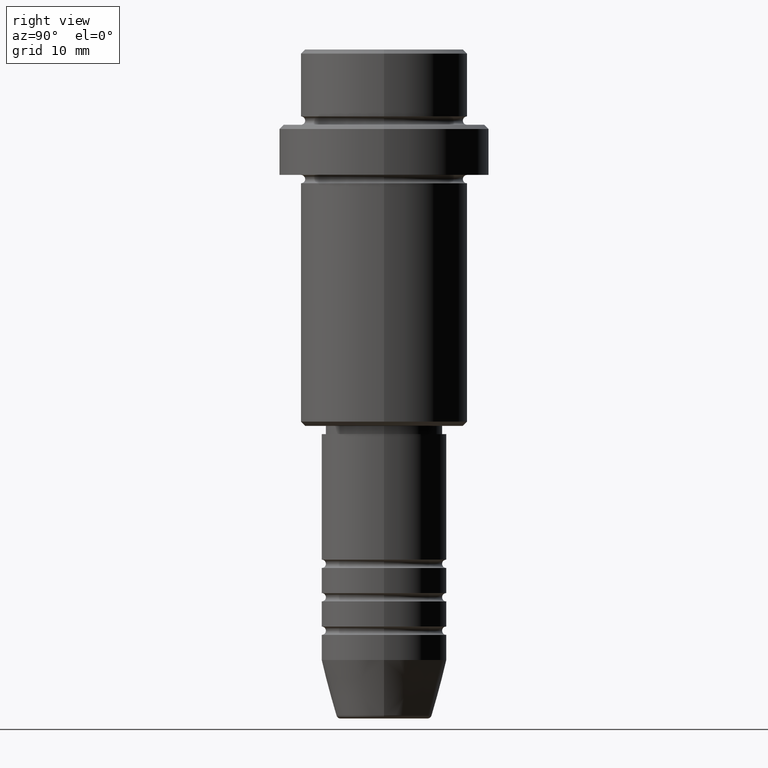
[diagram: clean part render]
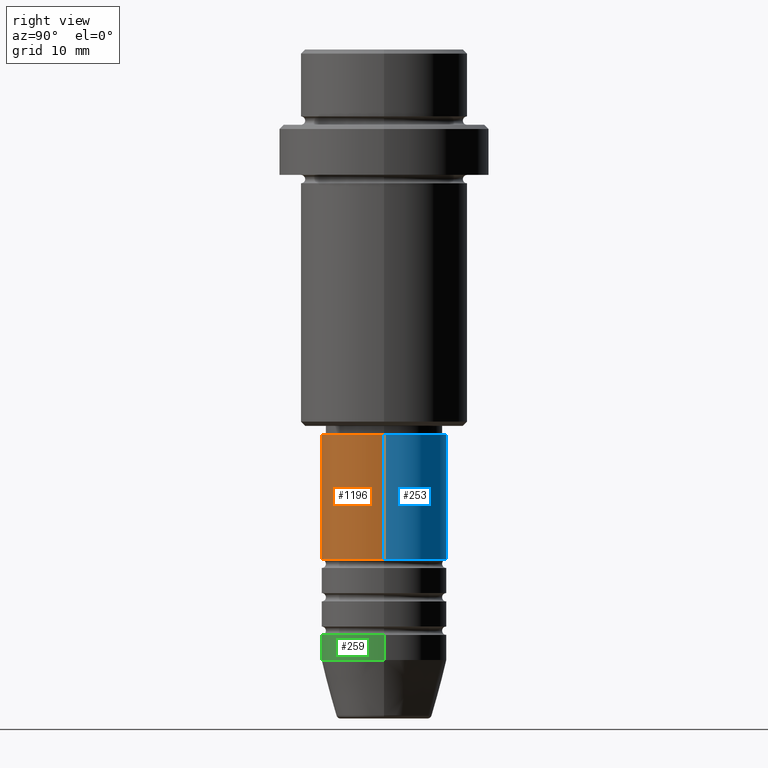
[diagram: same view with three faces highlighted in distinct colors, each labeled with its STEP entity id]
A machine part, right view with three faces highlighted in distinct colors.
Their STEP definitions:

[orange] entity #1196 — the highlighted cylindrical surface (partial cylindrical patch) has radius 7.5 mm, axis along (-0, -0, 1).
#59 = CARTESIAN_POINT ( 'NONE',  ( -7.500000000000000000, 9.184850993605147944E-16, -46.00000000000000000 ) ) ;
#84 = EDGE_CURVE ( 'NONE', #439, #211, #1319, .T. ) ;
#114 = CIRCLE ( 'NONE', #289, 7.500000000000000000 ) ;
#211 = VERTEX_POINT ( 'NONE', #630 ) ;
#257 = CARTESIAN_POINT ( 'NONE',  ( 0.000000000000000000, 0.000000000000000000, 0.000000000000000000 ) ) ;
#266 = VERTEX_POINT ( 'NONE', #1335 ) ;
#267 = DIRECTION ( 'NONE',  ( -0.000000000000000000, -0.000000000000000000, 1.000000000000000000 ) ) ;
#289 = AXIS2_PLACEMENT_3D ( 'NONE', #874, #307, #752 ) ;
#307 = DIRECTION ( 'NONE',  ( -0.000000000000000000, -0.000000000000000000, 1.000000000000000000 ) ) ;
#316 = DIRECTION ( 'NONE',  ( -0.000000000000000000, -0.000000000000000000, 1.000000000000000000 ) ) ;
#389 = CARTESIAN_POINT ( 'NONE',  ( -7.500000000000000000, 9.184850993605147944E-16, -60.99999999999989342 ) ) ;
#439 = VERTEX_POINT ( 'NONE', #59 ) ;
#477 = DIRECTION ( 'NONE',  ( 1.000000000000000000, 0.000000000000000000, 0.000000000000000000 ) ) ;
#557 = DIRECTION ( 'NONE',  ( 1.000000000000000000, 0.000000000000000000, 0.000000000000000000 ) ) ;
#573 = FACE_OUTER_BOUND ( 'NONE', #959, .T. ) ;
#578 = ORIENTED_EDGE ( 'NONE', *, *, #604, .F. ) ;
#604 = EDGE_CURVE ( 'NONE', #801, #439, #631, .T. ) ;
#616 = EDGE_CURVE ( 'NONE', #266, #211, #1199, .T. ) ;
#630 = CARTESIAN_POINT ( 'NONE',  ( 7.500000000000000000, 0.000000000000000000, -46.00000000000000000 ) ) ;
#631 = LINE ( 'NONE', #781, #1237 ) ;
#707 = EDGE_CURVE ( 'NONE', #801, #266, #114, .T. ) ;
#718 = CARTESIAN_POINT ( 'NONE',  ( 0.000000000000000000, 0.000000000000000000, -46.00000000000000000 ) ) ;
#725 = AXIS2_PLACEMENT_3D ( 'NONE', #257, #1221, #557 ) ;
#752 = DIRECTION ( 'NONE',  ( 1.000000000000000000, 0.000000000000000000, 0.000000000000000000 ) ) ;
#781 = CARTESIAN_POINT ( 'NONE',  ( -7.500000000000000000, 9.184850993605147944E-16, 0.000000000000000000 ) ) ;
#801 = VERTEX_POINT ( 'NONE', #389 ) ;
#802 = VECTOR ( 'NONE', #316, 1000.000000000000000 ) ;
#874 = CARTESIAN_POINT ( 'NONE',  ( 0.000000000000000000, 0.000000000000000000, -60.99999999999989342 ) ) ;
#880 = CARTESIAN_POINT ( 'NONE',  ( 7.500000000000000000, 0.000000000000000000, 0.000000000000000000 ) ) ;
#940 = AXIS2_PLACEMENT_3D ( 'NONE', #718, #267, #477 ) ;
#959 = EDGE_LOOP ( 'NONE', ( #578, #1022, #1048, #1289 ) ) ;
#993 = DIRECTION ( 'NONE',  ( -0.000000000000000000, -0.000000000000000000, 1.000000000000000000 ) ) ;
#1022 = ORIENTED_EDGE ( 'NONE', *, *, #707, .T. ) ;
#1031 = CYLINDRICAL_SURFACE ( 'NONE', #725, 7.500000000000000000 ) ;
#1048 = ORIENTED_EDGE ( 'NONE', *, *, #616, .T. ) ;
#1196 = ADVANCED_FACE ( 'NONE', ( #573 ), #1031, .T. ) ;
#1199 = LINE ( 'NONE', #880, #802 ) ;
#1221 = DIRECTION ( 'NONE',  ( -0.000000000000000000, -0.000000000000000000, 1.000000000000000000 ) ) ;
#1237 = VECTOR ( 'NONE', #993, 1000.000000000000000 ) ;
#1289 = ORIENTED_EDGE ( 'NONE', *, *, #84, .F. ) ;
#1319 = CIRCLE ( 'NONE', #940, 7.500000000000000000 ) ;
#1335 = CARTESIAN_POINT ( 'NONE',  ( 7.500000000000000000, 0.000000000000000000, -60.99999999999989342 ) ) ;

[blue] entity #253 — the highlighted cylindrical surface (partial cylindrical patch) has radius 7.5 mm, axis along (-0, -0, 1).
#17 = ORIENTED_EDGE ( 'NONE', *, *, #604, .T. ) ;
#19 = CYLINDRICAL_SURFACE ( 'NONE', #110, 7.500000000000000000 ) ;
#59 = CARTESIAN_POINT ( 'NONE',  ( -7.500000000000000000, 9.184850993605147944E-16, -46.00000000000000000 ) ) ;
#80 = DIRECTION ( 'NONE',  ( 1.000000000000000000, 0.000000000000000000, 0.000000000000000000 ) ) ;
#94 = DIRECTION ( 'NONE',  ( -0.000000000000000000, -0.000000000000000000, 1.000000000000000000 ) ) ;
#110 = AXIS2_PLACEMENT_3D ( 'NONE', #255, #1246, #462 ) ;
#211 = VERTEX_POINT ( 'NONE', #630 ) ;
#253 = ADVANCED_FACE ( 'NONE', ( #1116 ), #19, .T. ) ;
#255 = CARTESIAN_POINT ( 'NONE',  ( 0.000000000000000000, 0.000000000000000000, 0.000000000000000000 ) ) ;
#266 = VERTEX_POINT ( 'NONE', #1335 ) ;
#316 = DIRECTION ( 'NONE',  ( -0.000000000000000000, -0.000000000000000000, 1.000000000000000000 ) ) ;
#379 = AXIS2_PLACEMENT_3D ( 'NONE', #1201, #94, #1172 ) ;
#389 = CARTESIAN_POINT ( 'NONE',  ( -7.500000000000000000, 9.184850993605147944E-16, -60.99999999999989342 ) ) ;
#439 = VERTEX_POINT ( 'NONE', #59 ) ;
#451 = EDGE_CURVE ( 'NONE', #266, #801, #1186, .T. ) ;
#462 = DIRECTION ( 'NONE',  ( 1.000000000000000000, 0.000000000000000000, 0.000000000000000000 ) ) ;
#600 = ORIENTED_EDGE ( 'NONE', *, *, #451, .T. ) ;
#604 = EDGE_CURVE ( 'NONE', #801, #439, #631, .T. ) ;
#616 = EDGE_CURVE ( 'NONE', #266, #211, #1199, .T. ) ;
#630 = CARTESIAN_POINT ( 'NONE',  ( 7.500000000000000000, 0.000000000000000000, -46.00000000000000000 ) ) ;
#631 = LINE ( 'NONE', #781, #1237 ) ;
#679 = ORIENTED_EDGE ( 'NONE', *, *, #1358, .F. ) ;
#696 = ORIENTED_EDGE ( 'NONE', *, *, #616, .F. ) ;
#781 = CARTESIAN_POINT ( 'NONE',  ( -7.500000000000000000, 9.184850993605147944E-16, 0.000000000000000000 ) ) ;
#801 = VERTEX_POINT ( 'NONE', #389 ) ;
#802 = VECTOR ( 'NONE', #316, 1000.000000000000000 ) ;
#880 = CARTESIAN_POINT ( 'NONE',  ( 7.500000000000000000, 0.000000000000000000, 0.000000000000000000 ) ) ;
#993 = DIRECTION ( 'NONE',  ( -0.000000000000000000, -0.000000000000000000, 1.000000000000000000 ) ) ;
#1002 = EDGE_LOOP ( 'NONE', ( #600, #17, #679, #696 ) ) ;
#1116 = FACE_OUTER_BOUND ( 'NONE', #1002, .T. ) ;
#1172 = DIRECTION ( 'NONE',  ( 1.000000000000000000, 0.000000000000000000, 0.000000000000000000 ) ) ;
#1179 = CIRCLE ( 'NONE', #379, 7.500000000000000000 ) ;
#1186 = CIRCLE ( 'NONE', #1371, 7.500000000000000000 ) ;
#1199 = LINE ( 'NONE', #880, #802 ) ;
#1201 = CARTESIAN_POINT ( 'NONE',  ( 0.000000000000000000, 0.000000000000000000, -46.00000000000000000 ) ) ;
#1237 = VECTOR ( 'NONE', #993, 1000.000000000000000 ) ;
#1246 = DIRECTION ( 'NONE',  ( -0.000000000000000000, -0.000000000000000000, 1.000000000000000000 ) ) ;
#1272 = DIRECTION ( 'NONE',  ( -0.000000000000000000, -0.000000000000000000, 1.000000000000000000 ) ) ;
#1335 = CARTESIAN_POINT ( 'NONE',  ( 7.500000000000000000, 0.000000000000000000, -60.99999999999989342 ) ) ;
#1358 = EDGE_CURVE ( 'NONE', #211, #439, #1179, .T. ) ;
#1371 = AXIS2_PLACEMENT_3D ( 'NONE', #1373, #1272, #80 ) ;
#1373 = CARTESIAN_POINT ( 'NONE',  ( 0.000000000000000000, 0.000000000000000000, -60.99999999999989342 ) ) ;

[green] entity #259 — the highlighted cylindrical surface (partial cylindrical patch) has radius 7.5 mm, axis along (-0, -0, 1).
#3 = DIRECTION ( 'NONE',  ( 1.000000000000000000, 0.000000000000000000, 0.000000000000000000 ) ) ;
#53 = CARTESIAN_POINT ( 'NONE',  ( 0.000000000000000000, 0.000000000000000000, -73.00000000000001421 ) ) ;
#83 = CARTESIAN_POINT ( 'NONE',  ( -7.500000000000000000, 9.184850993605147944E-16, 0.000000000000000000 ) ) ;
#85 = EDGE_CURVE ( 'NONE', #1010, #1230, #270, .T. ) ;
#176 = DIRECTION ( 'NONE',  ( 1.000000000000000000, 0.000000000000000000, 0.000000000000000000 ) ) ;
#178 = CARTESIAN_POINT ( 'NONE',  ( 7.500000000000000000, 0.000000000000000000, 0.000000000000000000 ) ) ;
#237 = VERTEX_POINT ( 'NONE', #262 ) ;
#259 = ADVANCED_FACE ( 'NONE', ( #697 ), #364, .T. ) ;
#262 = CARTESIAN_POINT ( 'NONE',  ( -7.500000000000000000, 9.184850993605147944E-16, -70.00000000000000000 ) ) ;
#268 = DIRECTION ( 'NONE',  ( -0.000000000000000000, -0.000000000000000000, 1.000000000000000000 ) ) ;
#270 = CIRCLE ( 'NONE', #799, 7.500000000000000000 ) ;
#329 = CARTESIAN_POINT ( 'NONE',  ( 0.000000000000000000, 0.000000000000000000, -70.00000000000000000 ) ) ;
#364 = CYLINDRICAL_SURFACE ( 'NONE', #843, 7.500000000000000000 ) ;
#423 = AXIS2_PLACEMENT_3D ( 'NONE', #329, #992, #3 ) ;
#461 = VERTEX_POINT ( 'NONE', #625 ) ;
#525 = CARTESIAN_POINT ( 'NONE',  ( -7.500000000000000000, 9.184850993605147944E-16, -73.00000000000001421 ) ) ;
#558 = ORIENTED_EDGE ( 'NONE', *, *, #85, .T. ) ;
#585 = DIRECTION ( 'NONE',  ( 1.000000000000000000, 0.000000000000000000, 0.000000000000000000 ) ) ;
#608 = DIRECTION ( 'NONE',  ( -0.000000000000000000, -0.000000000000000000, 1.000000000000000000 ) ) ;
#625 = CARTESIAN_POINT ( 'NONE',  ( 7.500000000000000000, 0.000000000000000000, -70.00000000000000000 ) ) ;
#697 = FACE_OUTER_BOUND ( 'NONE', #804, .T. ) ;
#727 = DIRECTION ( 'NONE',  ( -0.000000000000000000, -0.000000000000000000, 1.000000000000000000 ) ) ;
#745 = DIRECTION ( 'NONE',  ( -0.000000000000000000, -0.000000000000000000, 1.000000000000000000 ) ) ;
#790 = CARTESIAN_POINT ( 'NONE',  ( 7.500000000000000000, 0.000000000000000000, -73.00000000000001421 ) ) ;
#799 = AXIS2_PLACEMENT_3D ( 'NONE', #53, #727, #176 ) ;
#804 = EDGE_LOOP ( 'NONE', ( #1128, #558, #1097, #1019 ) ) ;
#813 = LINE ( 'NONE', #178, #1209 ) ;
#833 = EDGE_CURVE ( 'NONE', #1230, #461, #813, .T. ) ;
#843 = AXIS2_PLACEMENT_3D ( 'NONE', #1129, #268, #585 ) ;
#935 = CIRCLE ( 'NONE', #423, 7.500000000000000000 ) ;
#963 = VECTOR ( 'NONE', #745, 1000.000000000000000 ) ;
#982 = EDGE_CURVE ( 'NONE', #1010, #237, #1285, .T. ) ;
#992 = DIRECTION ( 'NONE',  ( -0.000000000000000000, -0.000000000000000000, 1.000000000000000000 ) ) ;
#1010 = VERTEX_POINT ( 'NONE', #525 ) ;
#1019 = ORIENTED_EDGE ( 'NONE', *, *, #1121, .F. ) ;
#1097 = ORIENTED_EDGE ( 'NONE', *, *, #833, .T. ) ;
#1121 = EDGE_CURVE ( 'NONE', #237, #461, #935, .T. ) ;
#1128 = ORIENTED_EDGE ( 'NONE', *, *, #982, .F. ) ;
#1129 = CARTESIAN_POINT ( 'NONE',  ( 0.000000000000000000, 0.000000000000000000, 0.000000000000000000 ) ) ;
#1209 = VECTOR ( 'NONE', #608, 1000.000000000000000 ) ;
#1230 = VERTEX_POINT ( 'NONE', #790 ) ;
#1285 = LINE ( 'NONE', #83, #963 ) ;